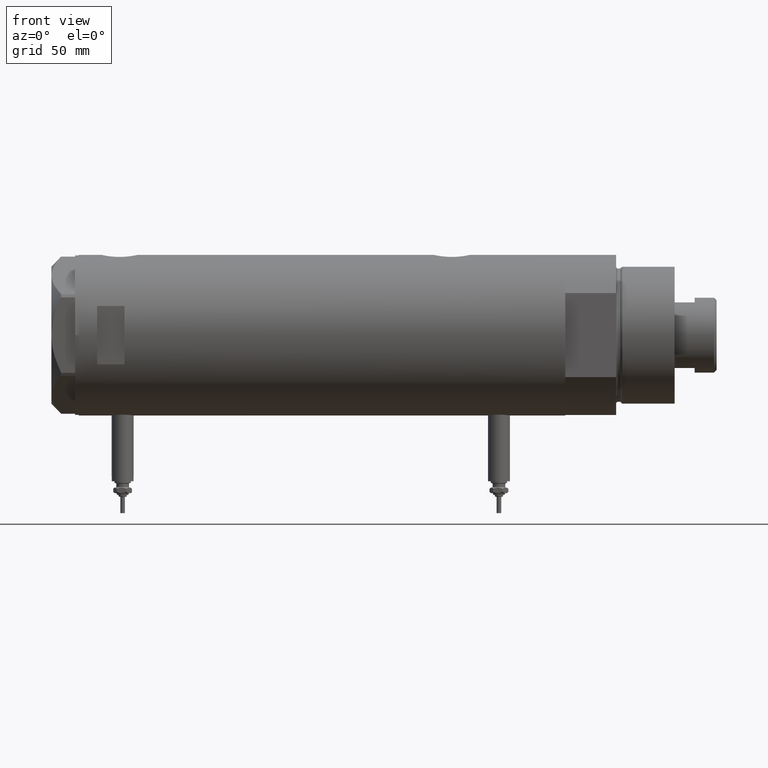
[diagram: clean part render]
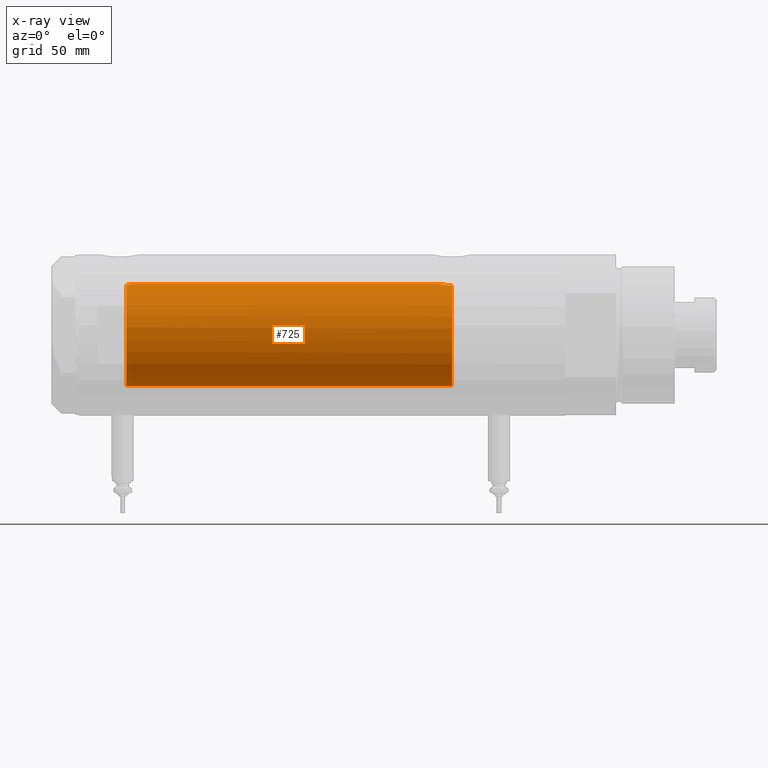
[diagram: x-ray — body ghosted, one internal face saturated and labeled with its STEP entity id]
A machine part, front view, then the same camera in x-ray: the body is ghosted and one INTERNAL B-rep face — a face not visible from any outside direction — is saturated and labeled: STEP entity #725.
In plain terms, the highlighted cylindrical surface (partial cylindrical patch) has radius 28 mm, axis along (1, 0, -0).
Its self-contained STEP definition (entity closure, byte-faithful):
#3 = CIRCLE ( 'NONE', #5729, 28.00000000000000000 ) ;
#72 = CARTESIAN_POINT ( 'NONE',  ( -28.00000000000000000, 0.000000000000000000, 107.1999999999999886 ) ) ;
#126 = EDGE_CURVE ( 'NONE', #3532, #4831, #5640, .T. ) ;
#139 = ORIENTED_EDGE ( 'NONE', *, *, #345, .T. ) ;
#217 = AXIS2_PLACEMENT_3D ( 'NONE', #1023, #4741, #1948 ) ;
#345 = EDGE_CURVE ( 'NONE', #2483, #4831, #3, .T. ) ;
#355 = CARTESIAN_POINT ( 'NONE',  ( 27.87937907436174001, -2.608343522657389446, 104.8531017779723982 ) ) ;
#381 = DIRECTION ( 'NONE',  ( 1.000000000000000000, 0.000000000000000000, 0.000000000000000000 ) ) ;
#402 = CARTESIAN_POINT ( 'NONE',  ( 27.86589383012873711, -2.744524676092587434, -65.11575755532261667 ) ) ;
#436 = CARTESIAN_POINT ( 'NONE',  ( 27.84562549742225457, -2.942523713096127036, -65.21055141078905137 ) ) ;
#541 = FACE_OUTER_BOUND ( 'NONE', #2301, .T. ) ;
#597 = VECTOR ( 'NONE', #3254, 1000.000000000000000 ) ;
#679 = ORIENTED_EDGE ( 'NONE', *, *, #126, .F. ) ;
#725 = ADVANCED_FACE ( 'NONE', ( #541 ), #4259, .F. ) ;
#766 = ORIENTED_EDGE ( 'NONE', *, *, #4140, .F. ) ;
#779 = CARTESIAN_POINT ( 'NONE',  ( 27.68450581507583763, -4.196237264393388067, 105.8246780296441329 ) ) ;
#781 = VERTEX_POINT ( 'NONE', #5047 ) ;
#817 = CARTESIAN_POINT ( 'NONE',  ( 27.59002303441815229, -4.790793940098343029, 106.3581617652145752 ) ) ;
#934 = CARTESIAN_POINT ( 'NONE',  ( 28.00000000000000000, 8.058211040172173087E-16, -64.51999999999999602 ) ) ;
#951 = CARTESIAN_POINT ( 'NONE',  ( 27.22359243188622813, -6.548490838374237732, -70.32326656774588969 ) ) ;
#1023 = CARTESIAN_POINT ( 'NONE',  ( 0.000000000000000000, 0.000000000000000000, 133.1999999999999886 ) ) ;
#1125 = DIRECTION ( 'NONE',  ( 0.000000000000000000, 0.000000000000000000, -1.000000000000000000 ) ) ;
#1174 = AXIS2_PLACEMENT_3D ( 'NONE', #3864, #5296, #381 ) ;
#1264 = CARTESIAN_POINT ( 'NONE',  ( 27.21605408577812213, -6.579240077698945477, -71.19999999999998863 ) ) ;
#1330 = CARTESIAN_POINT ( 'NONE',  ( 27.85549665828546750, -2.850794839423820726, 104.9636768369876449 ) ) ;
#1407 = CARTESIAN_POINT ( 'NONE',  ( 27.34439869716138460, -6.024183900845911488, -68.44423424753804852 ) ) ;
#1523 = CARTESIAN_POINT ( 'NONE',  ( 27.94978721344213923, -1.729827962054674151, -64.73650615356601179 ) ) ;
#1754 = CARTESIAN_POINT ( 'NONE',  ( 28.00000000000001421, -0.5413643627070160447, 104.3199999999999648 ) ) ;
#1789 = CARTESIAN_POINT ( 'NONE',  ( 27.80347162683809614, -3.320043793664068321, 105.2127974257676470 ) ) ;
#1948 = DIRECTION ( 'NONE',  ( -1.000000000000000000, 0.000000000000000000, 0.000000000000000000 ) ) ;
#1968 = CARTESIAN_POINT ( 'NONE',  ( 27.28993558706078559, -6.267945658363885286, -69.05080727201159618 ) ) ;
#2284 = CARTESIAN_POINT ( 'NONE',  ( 28.00000000000000000, -0.2171842281426346610, -64.52000000000001023 ) ) ;
#2301 = EDGE_LOOP ( 'NONE', ( #2975, #2888, #766, #139, #679, #4565 ) ) ;
#2351 = CARTESIAN_POINT ( 'NONE',  ( 27.46622653369043121, -5.441176343402230664, 107.1999999999999886 ) ) ;
#2382 = CARTESIAN_POINT ( 'NONE',  ( -28.00000000000000000, 0.000000000000000000, -71.19999999999998863 ) ) ;
#2429 = CARTESIAN_POINT ( 'NONE',  ( 27.77950496257091828, -3.511644525604262324, -65.53121142391829324 ) ) ;
#2483 = VERTEX_POINT ( 'NONE', #1264 ) ;
#2716 = CARTESIAN_POINT ( 'NONE',  ( 27.50152613123827905, -5.265397630035334231, -67.13030070339347333 ) ) ;
#2743 = CARTESIAN_POINT ( 'NONE',  ( 28.00000000000000000, 3.429011037612588487E-15, 133.1999999999999886 ) ) ;
#2781 = CARTESIAN_POINT ( 'NONE',  ( 28.00000000000000000, 8.058211040172173087E-16, -64.51999999999999602 ) ) ;
#2888 = ORIENTED_EDGE ( 'NONE', *, *, #4568, .T. ) ;
#2921 = CARTESIAN_POINT ( 'NONE',  ( 27.99747352180818893, -0.4347571716796926333, -64.53072531013187074 ) ) ;
#2975 = ORIENTED_EDGE ( 'NONE', *, *, #3403, .F. ) ;
#3160 = CARTESIAN_POINT ( 'NONE',  ( 27.46622653369043121, -5.441176343402230664, 107.1999999999999886 ) ) ;
#3175 = CARTESIAN_POINT ( 'NONE',  ( 27.36461315879793688, -5.931995402771978121, -68.24427370164927709 ) ) ;
#3188 = CARTESIAN_POINT ( 'NONE',  ( 27.52591771332016535, -5.139864392033251406, 106.7568941995207723 ) ) ;
#3202 = CARTESIAN_POINT ( 'NONE',  ( 27.55308463769900484, -4.992385646466225069, -66.79156508565561978 ) ) ;
#3227 = DIRECTION ( 'NONE',  ( -0.000000000000000000, -0.000000000000000000, -1.000000000000000000 ) ) ;
#3254 = DIRECTION ( 'NONE',  ( -0.000000000000000000, -0.000000000000000000, -1.000000000000000000 ) ) ;
#3265 = CARTESIAN_POINT ( 'NONE',  ( 27.43032278742160912, -5.620674311437150017, -67.67201933177626927 ) ) ;
#3371 = CARTESIAN_POINT ( 'NONE',  ( 27.98730817101647617, -0.8707001454186236167, -64.57418472479976401 ) ) ;
#3403 = EDGE_CURVE ( 'NONE', #781, #5483, #3544, .T. ) ;
#3532 = VERTEX_POINT ( 'NONE', #72 ) ;
#3544 = B_SPLINE_CURVE_WITH_KNOTS ( 'NONE', 3,
 ( #4983, #1754, #5934, #3971, #3577, #355, #1330, #1789, #5450, #3646, #779, #817, #3188, #3160 ),
 .UNSPECIFIED., .F., .F.,
 ( 4, 2, 2, 2, 2, 2, 4 ),
 ( 2.584956204504771211E-19, 0.001600622945448066737, 0.002400934418172099780, 0.003201245890896132606, 0.004001557363620165432, 0.004801868836344196957, 0.006402491781792286028 ),
 .UNSPECIFIED. ) ;
#3577 = CARTESIAN_POINT ( 'NONE',  ( 27.92172852149585793, -2.107204279616225584, 104.6607593279537269 ) ) ;
#3629 = CARTESIAN_POINT ( 'NONE',  ( 27.21445766202533889, -6.585843933871728062, -70.76551644800676399 ) ) ;
#3646 = CARTESIAN_POINT ( 'NONE',  ( 27.71590503262371641, -3.984646725731645578, 105.6568856620623507 ) ) ;
#3660 = CARTESIAN_POINT ( 'NONE',  ( 27.97963188585491423, -1.089002775846577009, -64.60708365738665293 ) ) ;
#3807 = VECTOR ( 'NONE', #3227, 1000.000000000000000 ) ;
#3828 = CARTESIAN_POINT ( 'NONE',  ( 27.92072186409136236, -2.143620579020482975, -64.86381653969046113 ) ) ;
#3864 = CARTESIAN_POINT ( 'NONE',  ( 0.000000000000000000, 0.000000000000000000, 107.1999999999999886 ) ) ;
#3971 = CARTESIAN_POINT ( 'NONE',  ( 27.94009016578283777, -1.849003963078880153, 104.5794787532051231 ) ) ;
#4060 = DIRECTION ( 'NONE',  ( -1.000000000000000000, 0.000000000000000000, 0.000000000000000000 ) ) ;
#4119 = LINE ( 'NONE', #2743, #3807 ) ;
#4140 = EDGE_CURVE ( 'NONE', #2483, #5018, #5415, .T. ) ;
#4259 = CYLINDRICAL_SURFACE ( 'NONE', #217, 28.00000000000000000 ) ;
#4292 = CARTESIAN_POINT ( 'NONE',  ( 27.80238224209238140, -3.326386449198553752, -65.41852099557870304 ) ) ;
#4297 = CIRCLE ( 'NONE', #1174, 28.00000000000000000 ) ;
#4565 = ORIENTED_EDGE ( 'NONE', *, *, #4938, .T. ) ;
#4568 = EDGE_CURVE ( 'NONE', #781, #5018, #4119, .T. ) ;
#4578 = CARTESIAN_POINT ( 'NONE',  ( 27.70817449315709879, -4.048115514111796820, -65.89463981057743069 ) ) ;
#4741 = DIRECTION ( 'NONE',  ( -0.000000000000000000, -0.000000000000000000, -1.000000000000000000 ) ) ;
#4780 = CARTESIAN_POINT ( 'NONE',  ( 27.26146154097649443, -6.389008671741149392, -69.46702257288441729 ) ) ;
#4831 = VERTEX_POINT ( 'NONE', #2382 ) ;
#4938 = EDGE_CURVE ( 'NONE', #3532, #5483, #4297, .T. ) ;
#4983 = CARTESIAN_POINT ( 'NONE',  ( 28.00000000000000000, 0.000000000000000000, 104.3199999999999790 ) ) ;
#5018 = VERTEX_POINT ( 'NONE', #934 ) ;
#5047 = CARTESIAN_POINT ( 'NONE',  ( 28.00000000000000000, 0.000000000000000000, 104.3199999999999790 ) ) ;
#5116 = CARTESIAN_POINT ( 'NONE',  ( 27.65700784474207907, -4.380217411398929173, -66.17047453774084431 ) ) ;
#5225 = CARTESIAN_POINT ( 'NONE',  ( 27.40754191563009812, -5.730381220489945804, -67.85863096555546292 ) ) ;
#5296 = DIRECTION ( 'NONE',  ( 0.000000000000000000, 0.000000000000000000, 1.000000000000000000 ) ) ;
#5415 = B_SPLINE_CURVE_WITH_KNOTS ( 'NONE', 3,
 ( #5955, #3629, #951, #4780, #1968, #1407, #3175, #5225, #3265, #2716, #3202, #5116, #4578, #2429, #4292, #436, #402, #3828, #1523, #3660, #3371, #2921, #2284, #2781 ),
 .UNSPECIFIED., .F., .F.,
 ( 4, 2, 2, 2, 2, 2, 2, 2, 2, 2, 2, 4 ),
 ( 0.01022506235776658202, 0.01152748911132699637, 0.01282991586488741245, 0.01348112924166763697, 0.01413234261844786323, 0.01543476937200835217, 0.01673719612556883937, 0.01738840950234907257, 0.01803962287912930576, 0.01934204963268975480, 0.01999326300946997412, 0.02064447638625019343 ),
 .UNSPECIFIED. ) ;
#5450 = CARTESIAN_POINT ( 'NONE',  ( 27.77532582369375191, -3.546840381797769393, 105.3513442352566472 ) ) ;
#5483 = VERTEX_POINT ( 'NONE', #2351 ) ;
#5549 = CARTESIAN_POINT ( 'NONE',  ( -28.00000000000000000, 0.000000000000000000, 133.1999999999999886 ) ) ;
#5640 = LINE ( 'NONE', #5549, #597 ) ;
#5729 = AXIS2_PLACEMENT_3D ( 'NONE', #5785, #1125, #4060 ) ;
#5785 = CARTESIAN_POINT ( 'NONE',  ( 0.000000000000000000, 0.000000000000000000, -71.19999999999998863 ) ) ;
#5934 = CARTESIAN_POINT ( 'NONE',  ( 27.98432695902670275, -1.071102777755447599, 104.3858034427758952 ) ) ;
#5955 = CARTESIAN_POINT ( 'NONE',  ( 27.21605408577812213, -6.579240077698945477, -71.19999999999998863 ) ) ;